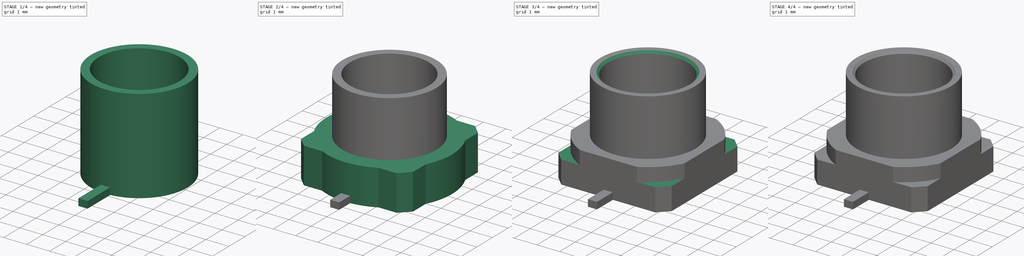
[diagram: build sequence overview — one tinted view per stage of 4, left to right]
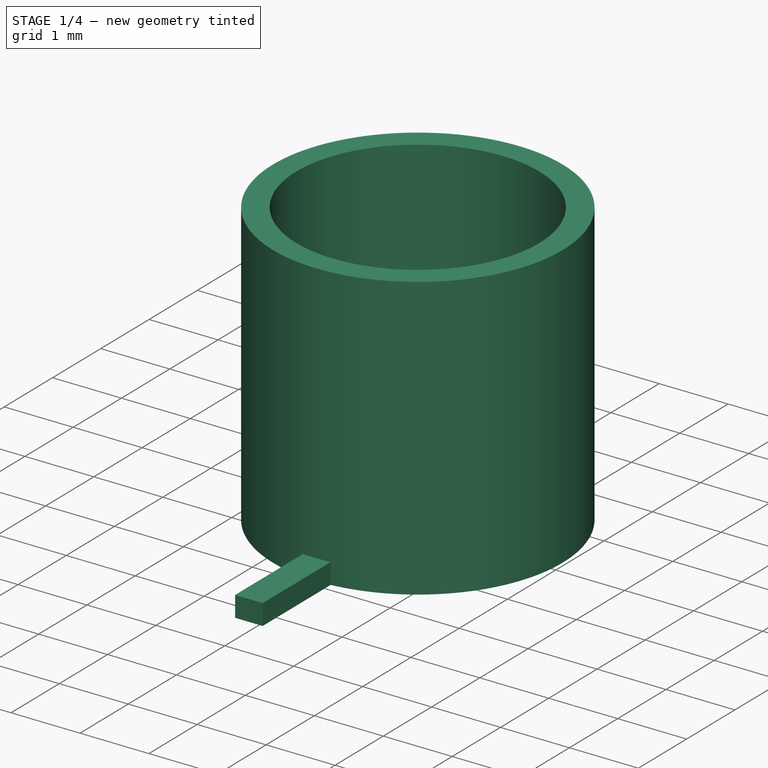
[diagram: stage 1 of 4 — iso view after this stage's code; geometry added in this stage tinted green]
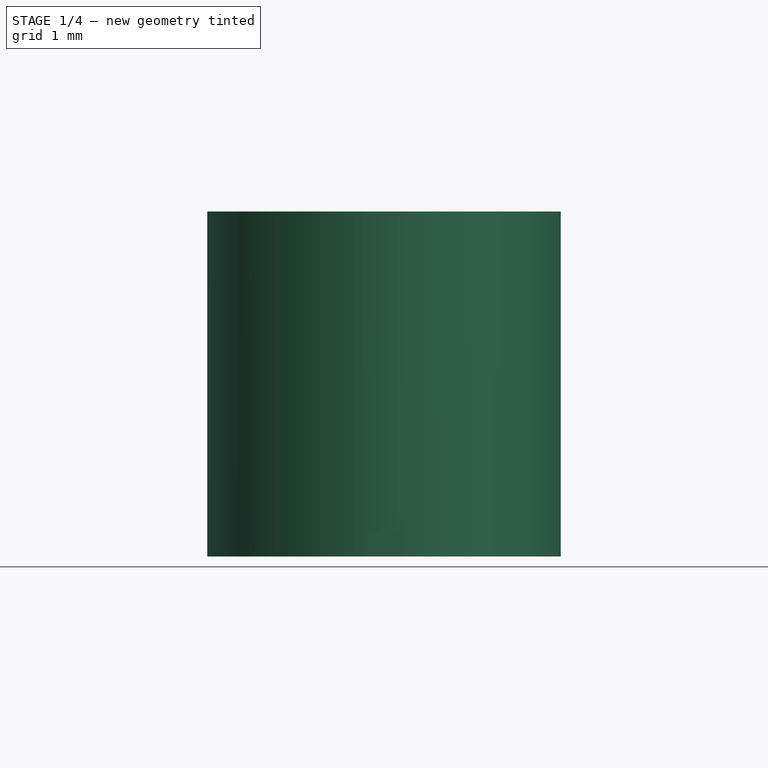
[diagram: stage 1 of 4 — front view after this stage's code; geometry added in this stage tinted green]
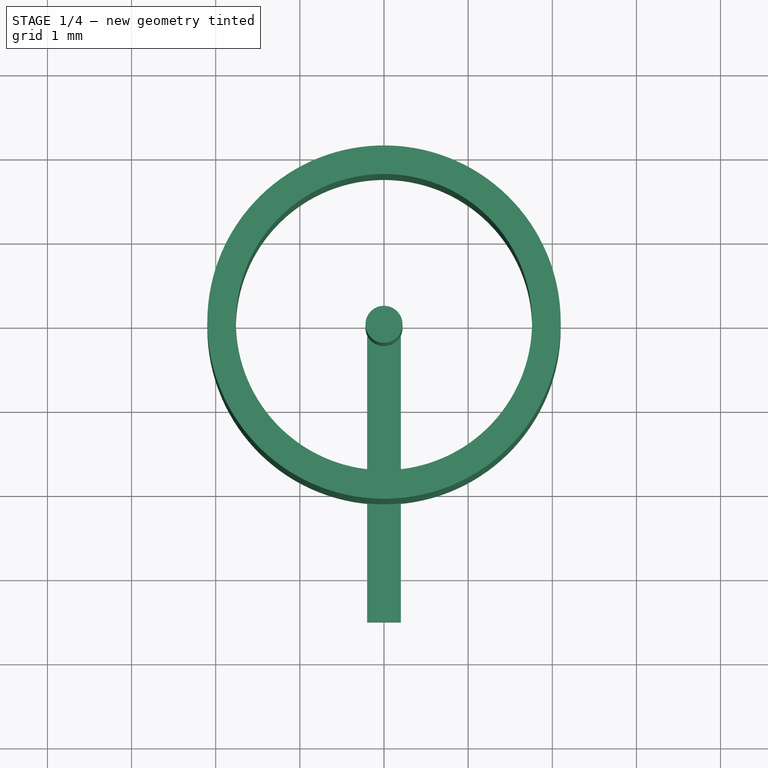
[diagram: stage 1 of 4 — top view after this stage's code; geometry added in this stage tinted green]
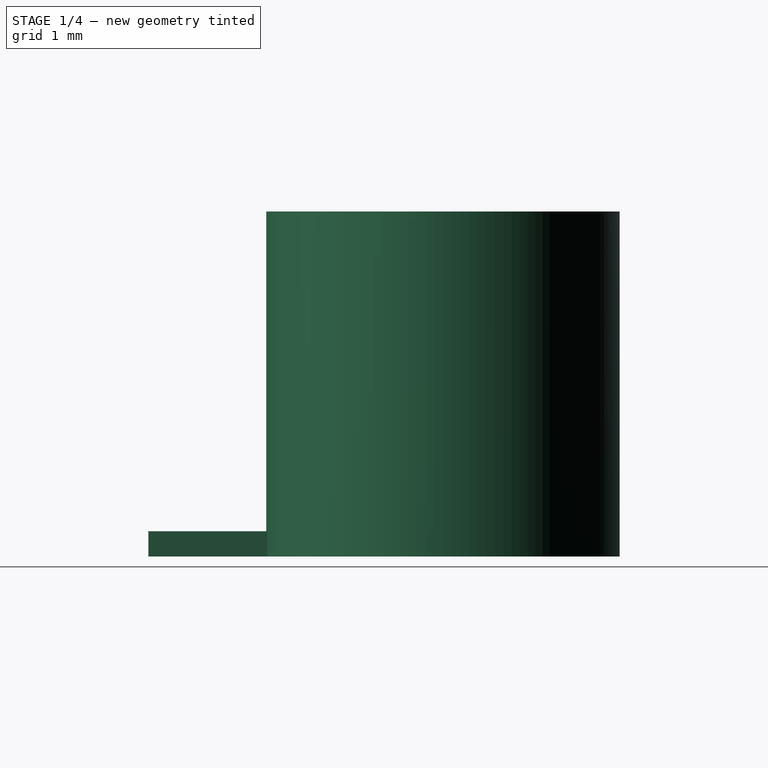
[diagram: stage 1 of 4 — right view after this stage's code; geometry added in this stage tinted green]
FCSTD DOCUMENT  (FreeCAD 0.18R13826 (Git))
Label: complex-Polyline-footprint
License: All rights reserved
LicenseURL: http://en.wikipedia.org/wiki/All_rights_reserved
objects: Sketcher::SketchObject×10, Part::Extrusion×5, App::Annotation×2, Part::FeaturePython×2, Part::Chamfer×2, Image::ImagePlane×1, App::DocumentObjectGroup×1, Part::MultiCommon×1, Part::Compound×1, Part::MultiFuse×1, Part::Feature×1
note: 23 computed .brp shape members not serialized (recipe doc carries the construction recipe); baked Part::Feature solids carry a one-line shape summary decoded from their .brp

FEATURE [Part::Extrusion] Extrude002
  Base = -> Sketch008
  Dir = (0,0,1)
  DirMode = 2
  FaceMakerClass = Part::FaceMakerBullseye
  LengthFwd = 4.1
  LengthRev = 0
  Solid = true
  Symmetric = false
FEATURE [Part::Extrusion] Extrude003
  Base = -> Sketch009
  Dir = (0,0,1)
  DirMode = 2
  FaceMakerClass = Part::FaceMakerBullseye
  LengthFwd = 2.59
  LengthRev = 0
  Solid = true
  Symmetric = false
FEATURE [Part::Extrusion] Extrude004
  Base = -> Sketch010
  Dir = (0,0,1)
  DirMode = 2
  FaceMakerClass = Part::FaceMakerBullseye
  LengthFwd = 0.3
  LengthRev = 0
  Solid = true
  Symmetric = false
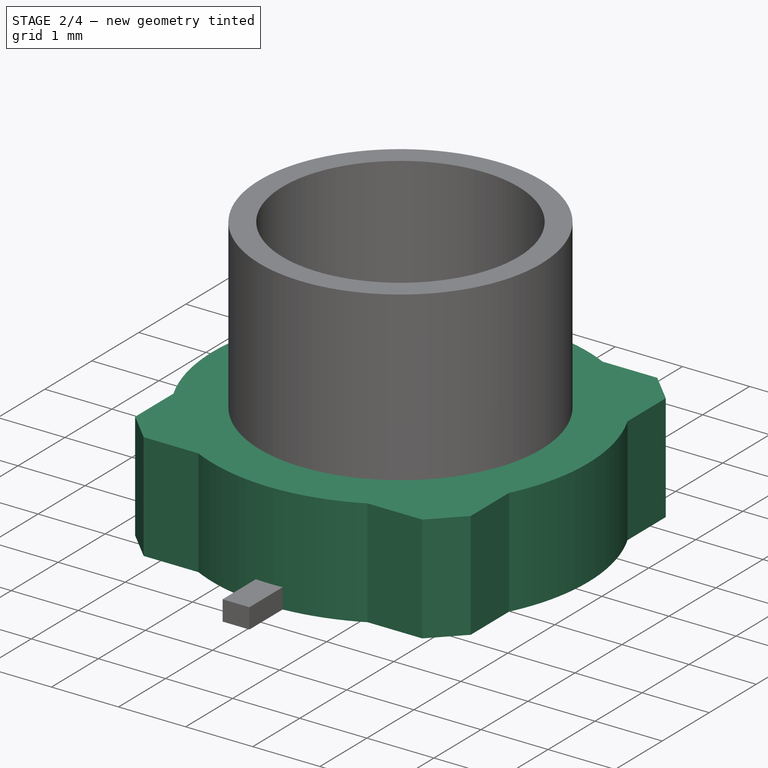
[diagram: stage 2 of 4 — iso view after this stage's code; geometry added in this stage tinted green]
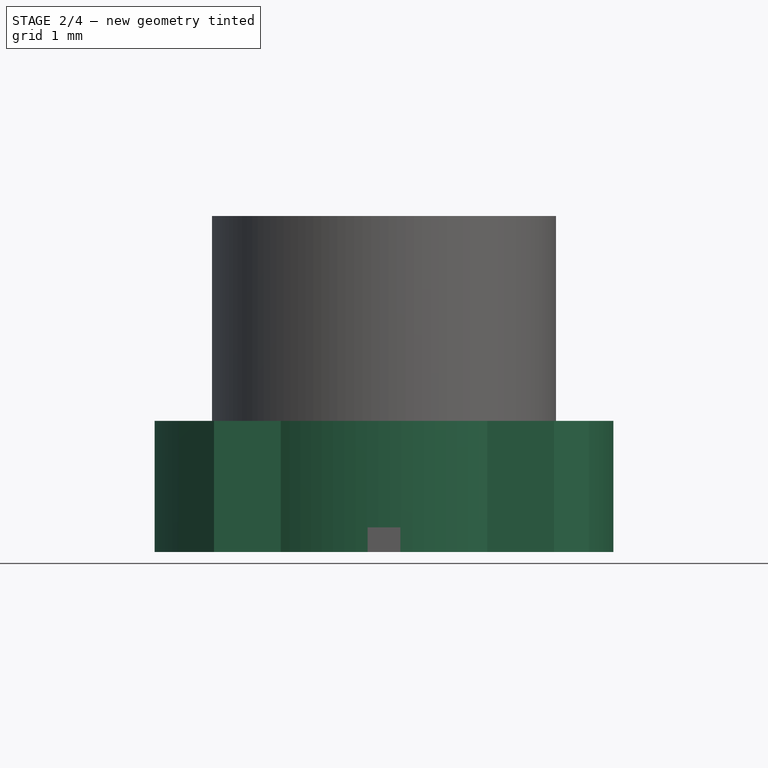
[diagram: stage 2 of 4 — front view after this stage's code; geometry added in this stage tinted green]
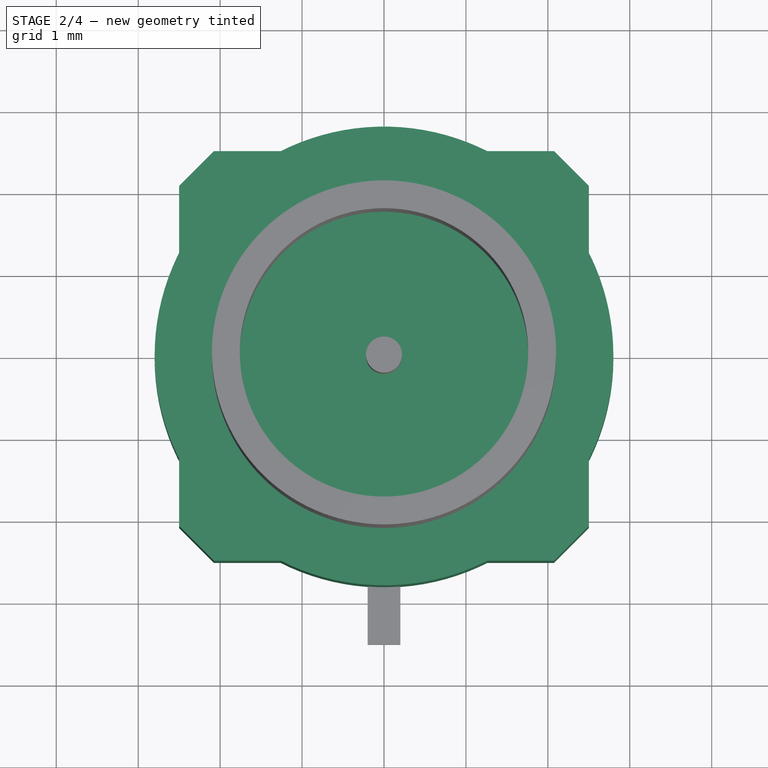
[diagram: stage 2 of 4 — top view after this stage's code; geometry added in this stage tinted green]
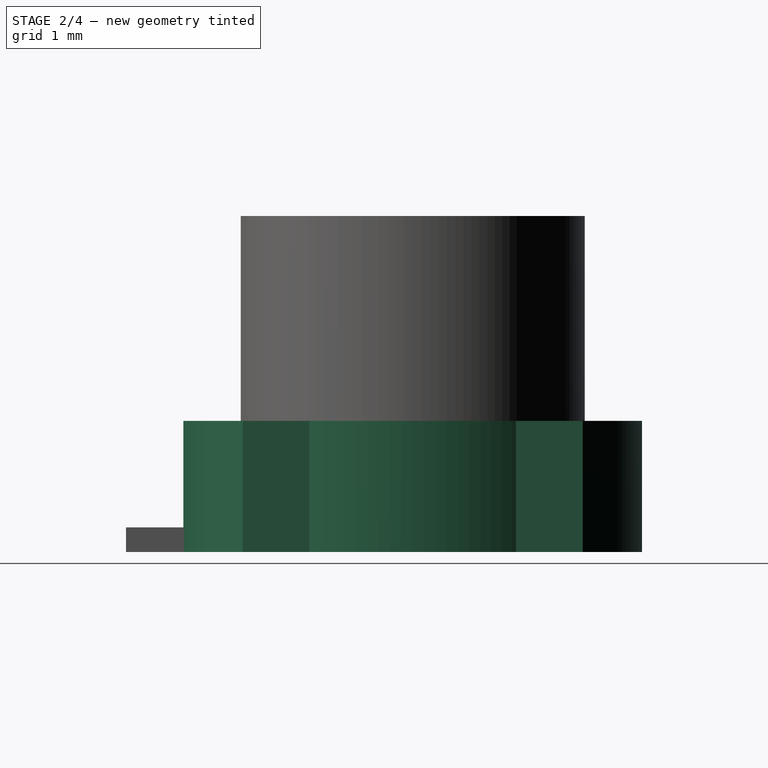
[diagram: stage 2 of 4 — right view after this stage's code; geometry added in this stage tinted green]
FEATURE [Image::ImagePlane] ImagePlane
  Placement = pos=(2.04,-0.2,-3) rot=(0,0,1;0rad)
  XSize = 19.2781
  YSize = 18.0682
FEATURE [Sketcher::SketchObject] Sketch  label="Pads_Poly_Arc"
  sketch-geometry (10):
    g0: Circle [constr] CenterX=0 CenterY=0 CenterZ=0 NormalX=0 NormalY=0 NormalZ=1 AngleXU=0 Radius=2
    g1: LineSegment StartX=-0.968702 StartY=-1.74975 StartZ=0 EndX=-0.968702 EndY=-2.6087 EndZ=0
    g2: LineSegment StartX=-0.968702 StartY=-2.6087 StartZ=0 EndX=-2.5687 EndY=-2.6087 EndZ=0
    g3: LineSegment StartX=-2.5687 StartY=-2.6087 StartZ=0 EndX=-2.5687 EndY=2.5913 EndZ=0
    g4: LineSegment StartX=-2.5687 StartY=2.5913 StartZ=0 EndX=2.6313 EndY=2.5913 EndZ=0
    g5: LineSegment StartX=2.6313 StartY=2.5913 StartZ=0 EndX=2.6313 EndY=-2.6087 EndZ=0
    g6: LineSegment StartX=2.6313 StartY=-2.6087 StartZ=0 EndX=1.0313 EndY=-2.6087 EndZ=0
    g7: LineSegment StartX=1.0313 StartY=-2.6087 StartZ=0 EndX=1.0313 EndY=-1.7136 EndZ=0
    g8: ArcOfCircle CenterX=0 CenterY=0 CenterZ=0 NormalX=0 NormalY=0 NormalZ=1 AngleXU=0 Radius=2 StartAngle=5.25415 EndAngle=10.49
    g9: Circle CenterX=-2 CenterY=-2 CenterZ=0 NormalX=0 NormalY=0 NormalZ=1 AngleXU=0 Radius=0.3
  constraints (27):
    c: Radius(g0) = 2
    c: Coincident(g-1,g0)
    c: Coincident(g1,g2)
    c: Coincident(g2,g3)
    c: Coincident(g3,g4)
    c: Coincident(g4,g5)
    c: Coincident(g5,g6)
    c: Coincident(g6,g7)
    c: Vertical(g5)
    c: Vertical(g3)
    c: Horizontal(g4)
    c: Horizontal(g6)
    c: Horizontal(g2)
    c: Vertical(g7)
    c: Vertical(g1)
    c: DistanceY(g3,g3) = 5.2
    c: Equal(g3,g5)
    c: DistanceX(g4,g4) = 5.2
    c: DistanceX(g2,g2) = 1.6
    c: Equal(g2,g6)
    c: Coincident(g-1,g8)
    c: Radius(g8) = 2
    c: Coincident(g1,g8)
    c: Coincident(g7,g8)
    c: DistanceX(g9,g-1) = 2
    c: DistanceY(g9,g-1) = 2
    c: Radius(g9) = 0.3
FEATURE [Sketcher::SketchObject] Sketch001  label="Pads_TH_SMD"
  sketch-geometry (4):
    g0: LineSegment StartX=-0.25 StartY=-2.2 StartZ=0 EndX=0.25 EndY=-2.2 EndZ=0
    g1: LineSegment StartX=0.25 StartY=-2.2 StartZ=0 EndX=0.25 EndY=-3.6 EndZ=0
    g2: LineSegment StartX=0.25 StartY=-3.6 StartZ=0 EndX=-0.25 EndY=-3.6 EndZ=0
    g3: LineSegment StartX=-0.25 StartY=-3.6 StartZ=0 EndX=-0.25 EndY=-2.2 EndZ=0
  constraints (12):
    c: Coincident(g0,g1)
    c: Coincident(g1,g2)
    c: Coincident(g2,g3)
    c: Coincident(g3,g0)
    c: Horizontal(g0)
    c: Horizontal(g2)
    c: Vertical(g1)
    c: Vertical(g3)
    c: DistanceX(g2,g2) = 0.5
    c: DistanceY(g2,g-1) = 3.6
    c: DistanceY(g1,g1) = 1.4
    c: DistanceX(g0,g-1) = 0.25
FEATURE [App::Annotation] Text  label="Ref#_1.0mm"
  LabelText = REF**
  Position = (0,4,0)
FEATURE [App::Annotation] Text001  label="Value#_1.0mm"
  LabelText = Value 
  Position = (0,-6,0)
FEATURE [Sketcher::SketchObject] Sketch003  label="F_Fab_0.01"
  sketch-geometry (14):
    g0: LineSegment StartX=-2.5 StartY=1.82966 StartZ=0 EndX=-1.82966 EndY=2.5 EndZ=0
    g1: LineSegment StartX=-1.82966 StartY=2.5 StartZ=0 EndX=1.82966 EndY=2.5 EndZ=0
    g2: LineSegment StartX=1.82966 StartY=2.5 StartZ=0 EndX=2.5 EndY=1.82966 EndZ=0
    g3: LineSegment StartX=2.5 StartY=1.82966 StartZ=0 EndX=2.5 EndY=-1.82966 EndZ=0
    g4: LineSegment StartX=2.5 StartY=-1.82966 StartZ=0 EndX=1.82966 EndY=-2.5 EndZ=0
    g5: LineSegment StartX=-1.82966 StartY=-2.5 StartZ=0 EndX=-2.5 EndY=-1.82966 EndZ=0
    g6: LineSegment StartX=-2.5 StartY=-1.82966 StartZ=0 EndX=-2.5 EndY=1.82966 EndZ=0
    g7: Circle CenterX=0 CenterY=0 CenterZ=0 NormalX=0 NormalY=0 NormalZ=1 AngleXU=0 Radius=2
    g8: Circle CenterX=0 CenterY=0 CenterZ=0 NormalX=0 NormalY=0 NormalZ=1 AngleXU=0 Radius=0.3
    g9: LineSegment StartX=-0.25 StartY=-2.5 StartZ=0 EndX=-0.25 EndY=-3.5 EndZ=0
    g10: LineSegment StartX=-0.25 StartY=-3.5 StartZ=0 EndX=0.25 EndY=-3.5 EndZ=0
    g11: LineSegment StartX=0.25 StartY=-3.5 StartZ=0 EndX=0.25 EndY=-2.5 EndZ=0
    g12: LineSegment StartX=-1.82966 StartY=-2.5 StartZ=0 EndX=-0.25 EndY=-2.5 EndZ=0
    g13: LineSegment StartX=0.25 StartY=-2.5 StartZ=0 EndX=1.82966 EndY=-2.5 EndZ=0
  constraints (40):
    c: Coincident(g0,g1)
    c: Coincident(g1,g2)
    c: Coincident(g2,g3)
    c: Coincident(g3,g4)
    c: Coincident(g5,g6)
    c: Coincident(g6,g0)
    c: Horizontal(g1)
    c: Vertical(g3)
    c: Vertical(g6)
    c: Equal(g2,g4)
    c: Equal(g4,g5)
    c: Equal(g5,g0)
    c: DistanceX(g0,g-1) = 2.5
    c: DistanceY(g-1,g1) = 2.5
    c: Angle(g0,g1) = 2.35619
    c: Angle(g1,g2) = 2.35619
    c: Angle(g5,g6) = 2.35619
    c: Angle(g3,g4) = 2.35619
    c: Symmetric(g0,g1,g-2)
    c: Symmetric(g5,g0,g-1)
    c: Distance(g4) = 0.948
    c: Coincident(g-1,g7)
    c: Radius(g7) = 2
    c: Coincident(g-1,g8)
    c: Radius(g8) = 0.3
    c: Coincident(g9,g10)
    c: Coincident(g10,g11)
    c: Horizontal(g13)
    c: Horizontal(g12)
    c: Horizontal(g10)
    c: Vertical(g11)
    c: Vertical(g9)
    c: Coincident(g5,g12)
    c: Coincident(g4,g13)
    c: Coincident(g11,g13)
    c: Coincident(g9,g12)
    c: DistanceX(g10,g10) = 0.5
    c: Equal(g12,g13)
    c: DistanceY(g11,g11) = 1
    c: Equal(g9,g11)
FEATURE [Sketcher::SketchObject] Sketch004  label="F_CrtYd_0.05"
  sketch-geometry (8):
    g0: LineSegment StartX=-2.8 StartY=2.8 StartZ=0 EndX=2.8 EndY=2.8 EndZ=0
    g1: LineSegment StartX=2.8 StartY=2.8 StartZ=0 EndX=2.8 EndY=-2.8 EndZ=0
    g2: LineSegment StartX=-2.8 StartY=-2.8 StartZ=0 EndX=-2.8 EndY=2.8 EndZ=0
    g3: LineSegment StartX=-2.8 StartY=-2.8 StartZ=0 EndX=-0.5 EndY=-2.8 EndZ=0
    g4: LineSegment StartX=-0.5 StartY=-2.8 StartZ=0 EndX=-0.5 EndY=-3.79947 EndZ=0
    g5: LineSegment StartX=-0.5 StartY=-3.79947 StartZ=0 EndX=0.5 EndY=-3.8 EndZ=0
    g6: LineSegment StartX=0.5 StartY=-3.8 StartZ=0 EndX=0.5 EndY=-2.8 EndZ=0
    g7: LineSegment StartX=0.5 StartY=-2.8 StartZ=0 EndX=2.8 EndY=-2.8 EndZ=0
  constraints (23):
    c: Coincident(g0,g1)
    c: Coincident(g2,g0)
    c: Horizontal(g0)
    c: Vertical(g1)
    c: Vertical(g2)
    c: Symmetric(g0,g0,g-2)
    c: DistanceX(g0,g0) = 5.6
    c: DistanceY(g-1,g0) = 2.8
    c: DistanceY(g2,g-1) = 2.8
    c: Coincident(g3,g4)
    c: Coincident(g4,g5)
    c: Coincident(g5,g6)
    c: Coincident(g6,g7)
    c: Coincident(g1,g7)
    c: Horizontal(g7)
    c: Horizontal(g3)
    c: Vertical(g4)
    c: Vertical(g6)
    c: DistanceX(g3,g3) = 2.3
    c: DistanceX(g7,g7) = 2.3
    c: DistanceY(g1,g-1) = 2.8
    c: DistanceX(g5,g5) = 1
    c: DistanceY(g6,g6) = 1
FEATURE [Sketcher::SketchObject] Sketch006  label="F_Silks_0.16"
  sketch-geometry (8):
    g0: LineSegment StartX=-2.8 StartY=2.8 StartZ=0 EndX=2.8 EndY=2.8 EndZ=0
    g1: LineSegment StartX=2.8 StartY=2.8 StartZ=0 EndX=2.8 EndY=-2.8 EndZ=0
    g2: LineSegment StartX=-2.8 StartY=-2.8 StartZ=0 EndX=-2.8 EndY=2.8 EndZ=0
    g3: LineSegment StartX=-2.8 StartY=-2.8 StartZ=0 EndX=-0.5 EndY=-2.8 EndZ=0
    g4: LineSegment StartX=-0.5 StartY=-2.8 StartZ=0 EndX=-0.5 EndY=-3.79947 EndZ=0
    g5: LineSegment StartX=-0.5 StartY=-3.79947 StartZ=0 EndX=0.5 EndY=-3.8 EndZ=0
    g6: LineSegment StartX=0.5 StartY=-3.8 StartZ=0 EndX=0.5 EndY=-2.8 EndZ=0
    g7: LineSegment StartX=0.5 StartY=-2.8 StartZ=0 EndX=2.8 EndY=-2.8 EndZ=0
  constraints (23):
    c: Coincident(g0,g1)
    c: Coincident(g2,g0)
    c: Horizontal(g0)
    c: Vertical(g1)
    c: Vertical(g2)
    c: Symmetric(g0,g0,g-2)
    c: DistanceX(g0,g0) = 5.6
    c: DistanceY(g-1,g0) = 2.8
    c: DistanceY(g2,g-1) = 2.8
    c: Coincident(g3,g4)
    c: Coincident(g4,g5)
    c: Coincident(g5,g6)
    c: Coincident(g6,g7)
    c: Coincident(g1,g7)
    c: Horizontal(g7)
    c: Horizontal(g3)
    c: Vertical(g4)
    c: Vertical(g6)
    c: DistanceX(g3,g3) = 2.3
    c: DistanceX(g7,g7) = 2.3
    c: DistanceY(g1,g-1) = 2.8
    c: DistanceX(g5,g5) = 1
    c: DistanceY(g6,g6) = 1
FEATURE [App::DocumentObjectGroup] Group  label="RF-19S101-40ML5"
  Group = -> [Text,Text001,Sketch001,Sketch003,Sketch004,Sketch006,Sketch]
FEATURE [Sketcher::SketchObject] Sketch007  label="base"
  sketch-geometry (8):
    g0: LineSegment StartX=-2.5 StartY=2.07574 StartZ=0 EndX=-2.07574 EndY=2.5 EndZ=0
    g1: LineSegment StartX=-2.07574 StartY=2.5 StartZ=0 EndX=2.07574 EndY=2.5 EndZ=0
    g2: LineSegment StartX=2.07574 StartY=2.5 StartZ=0 EndX=2.5 EndY=2.07574 EndZ=0
    g3: LineSegment StartX=2.5 StartY=2.07574 StartZ=0 EndX=2.5 EndY=-2.07574 EndZ=0
    g4: LineSegment StartX=2.5 StartY=-2.07574 StartZ=0 EndX=2.07574 EndY=-2.5 EndZ=0
    g5: LineSegment StartX=-2.07574 StartY=-2.5 StartZ=0 EndX=-2.5 EndY=-2.07574 EndZ=0
    g6: LineSegment StartX=-2.5 StartY=-2.07574 StartZ=0 EndX=-2.5 EndY=2.07574 EndZ=0
    g7: LineSegment StartX=-2.07574 StartY=-2.5 StartZ=0 EndX=2.07574 EndY=-2.5 EndZ=0
  constraints (24):
    c: Coincident(g0,g1)
    c: Coincident(g1,g2)
    c: Coincident(g2,g3)
    c: Coincident(g3,g4)
    c: Coincident(g5,g6)
    c: Coincident(g6,g0)
    c: Horizontal(g1)
    c: Vertical(g3)
    c: Vertical(g6)
    c: Equal(g2,g4)
    c: Equal(g4,g5)
    c: Equal(g5,g0)
    c: DistanceX(g0,g-1) = 2.5
    c: DistanceY(g-1,g1) = 2.5
    c: Angle(g0,g1) = 2.35619
    c: Angle(g1,g2) = 2.35619
    c: Angle(g5,g6) = 2.35619
    c: Angle(g3,g4) = 2.35619
    c: Symmetric(g0,g1,g-2)
    c: Symmetric(g5,g0,g-1)
    c: Distance(g4) = 0.6
    c: Horizontal(g7)
    c: Coincident(g5,g7)
    c: Coincident(g4,g7)
FEATURE [Sketcher::SketchObject] Sketch008  label="cyl"
  sketch-geometry (2):
    g0: Circle CenterX=0 CenterY=0 CenterZ=0 NormalX=0 NormalY=0 NormalZ=1 AngleXU=0 Radius=1.76
    g1: Circle CenterX=0 CenterY=0 CenterZ=0 NormalX=0 NormalY=0 NormalZ=1 AngleXU=0 Radius=2.1
  constraints (4):
    c: Coincident(g-1,g0)
    c: Radius(g0) = 1.76
    c: Radius(g1) = 2.1
    c: Coincident(g-1,g1)
FEATURE [Sketcher::SketchObject] Sketch009  label="centralpin"
  sketch-geometry (1):
    g0: Circle CenterX=0 CenterY=0 CenterZ=0 NormalX=0 NormalY=0 NormalZ=1 AngleXU=0 Radius=0.22
  constraints (2):
    c: Coincident(g-1,g0)
    c: Radius(g0) = 0.22
FEATURE [Sketcher::SketchObject] Sketch010  label="pinrect"
  sketch-geometry (4):
    g0: LineSegment StartX=-0.2 StartY=0 StartZ=0 EndX=-0.2 EndY=-3.5 EndZ=0
    g1: LineSegment StartX=-0.2 StartY=-3.5 StartZ=0 EndX=0.2 EndY=-3.5 EndZ=0
    g2: LineSegment StartX=0.2 StartY=-3.5 StartZ=0 EndX=0.2 EndY=0 EndZ=0
    g3: LineSegment StartX=-0.2 StartY=0 StartZ=0 EndX=0.2 EndY=0 EndZ=0
  constraints (12):
    c: Coincident(g0,g1)
    c: Coincident(g1,g2)
    c: Horizontal(g1)
    c: Vertical(g2)
    c: Vertical(g0)
    c: DistanceX(g1,g1) = 0.4
    c: DistanceY(g2,g2) = 3.5
    c: Equal(g0,g2)
    c: DistanceX(g0,g-1) = 0.2
    c: DistanceY(g0,g-1) = 3.5
    c: Coincident(g2,g3)
    c: Coincident(g0,g3)
FEATURE [Sketcher::SketchObject] Sketch011  label="cyl001"
  sketch-geometry (1):
    g0: Circle CenterX=0 CenterY=0 CenterZ=0 NormalX=0 NormalY=0 NormalZ=1 AngleXU=0 Radius=2.8
  constraints (2):
    c: Coincident(g-1,g0)
    c: Radius(g0) = 2.8
FEATURE [Part::Extrusion] Extrude  label="Extrude-base"
  Base = -> Sketch007
  Dir = (0,0,1)
  DirMode = 2
  FaceMakerClass = Part::FaceMakerBullseye
  LengthFwd = 1
  LengthRev = 0
  Solid = true
  Symmetric = false
FEATURE [Part::Extrusion] Extrude001
  Base = -> Sketch011
  Dir = (0,0,1)
  DirMode = 2
  FaceMakerClass = Part::FaceMakerBullseye
  LengthFwd = 1.6
  LengthRev = 0
  Solid = true
  Symmetric = false
FEATURE [Part::FeaturePython] Clone  label="Clone of Extrude-base"  # Draft clone (typed FeaturePython)
  AttacherType = Attacher::AttachEngine3D
  Fuse = false
  Objects = -> [Extrude]
  Scale = (1,1,1.6)
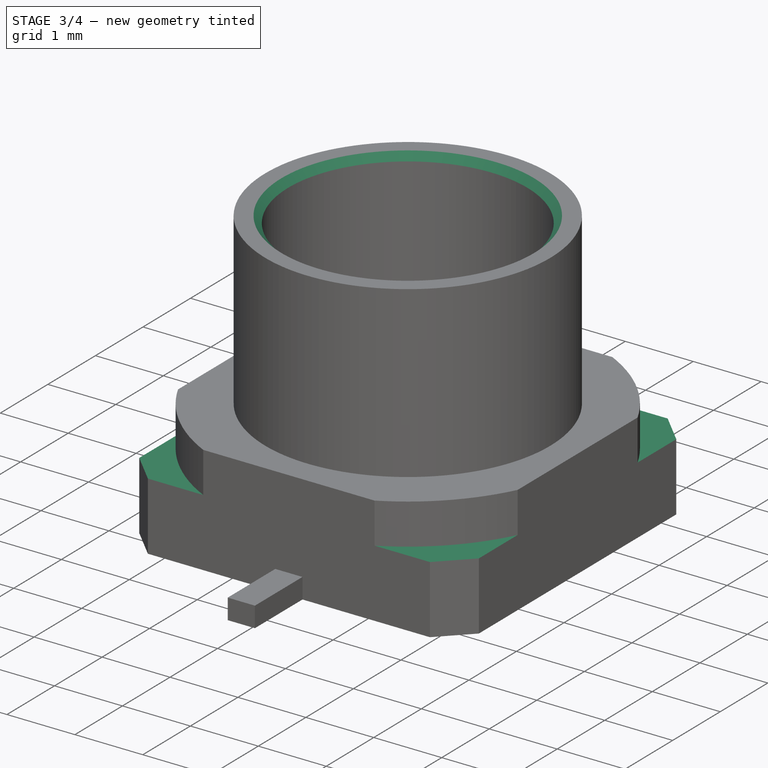
[diagram: stage 3 of 4 — iso view after this stage's code; geometry added in this stage tinted green]
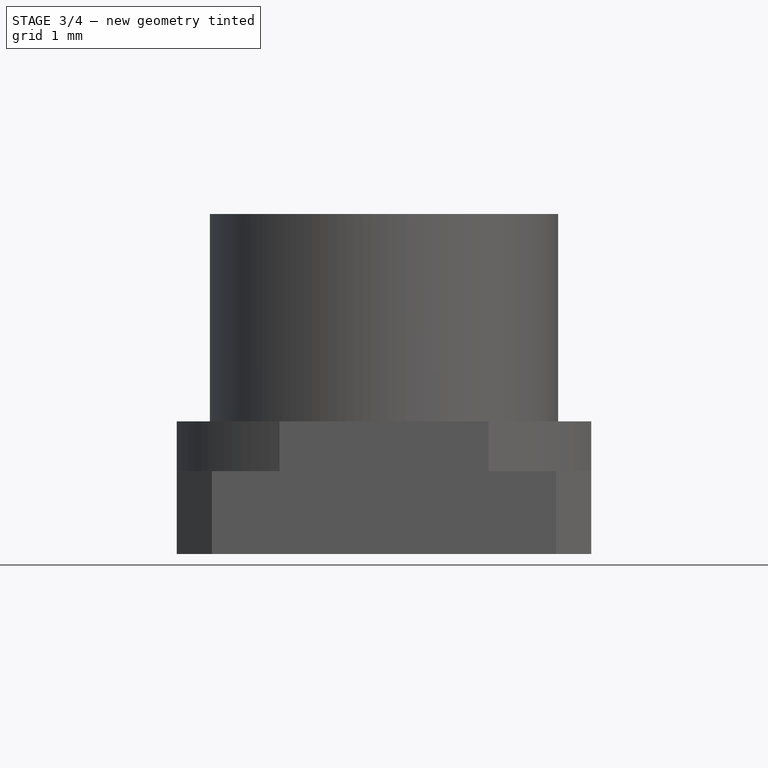
[diagram: stage 3 of 4 — front view after this stage's code; geometry added in this stage tinted green]
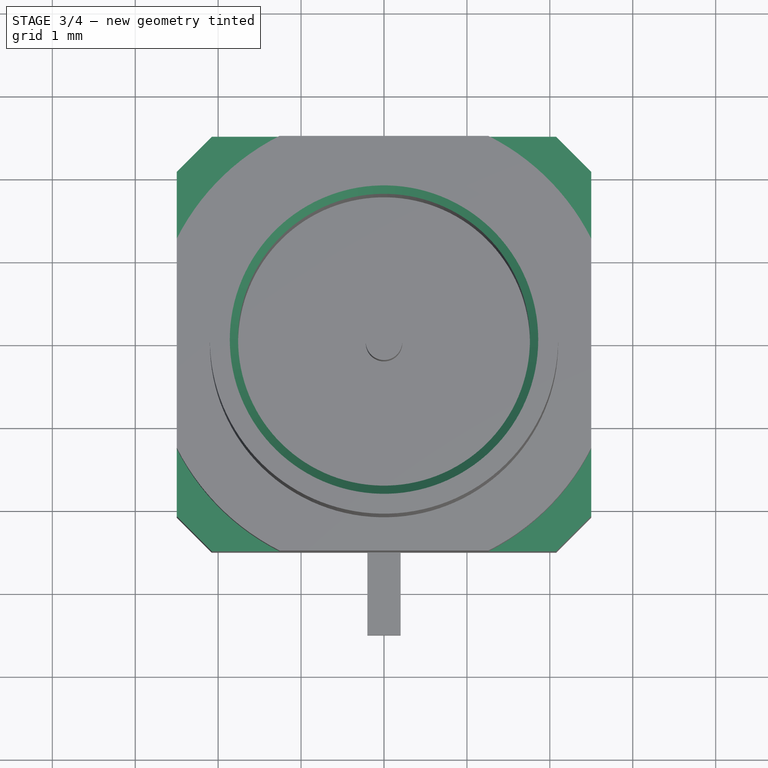
[diagram: stage 3 of 4 — top view after this stage's code; geometry added in this stage tinted green]
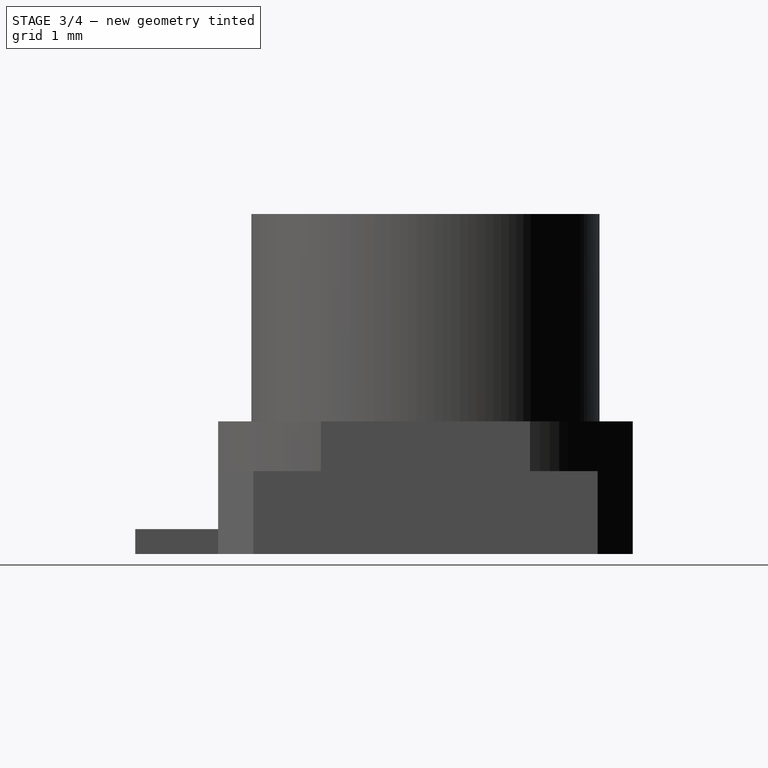
[diagram: stage 3 of 4 — right view after this stage's code; geometry added in this stage tinted green]
FEATURE [Part::MultiCommon] Common
  Shapes = -> [Extrude001,Clone]
FEATURE [Part::Compound] Compound
  Links = -> [Extrude002,Extrude,Common,Extrude003,Extrude004]
FEATURE [Part::Chamfer] Chamfer
  Base = -> Compound
  Edges = 1 edges r=0.1: [Edge6]
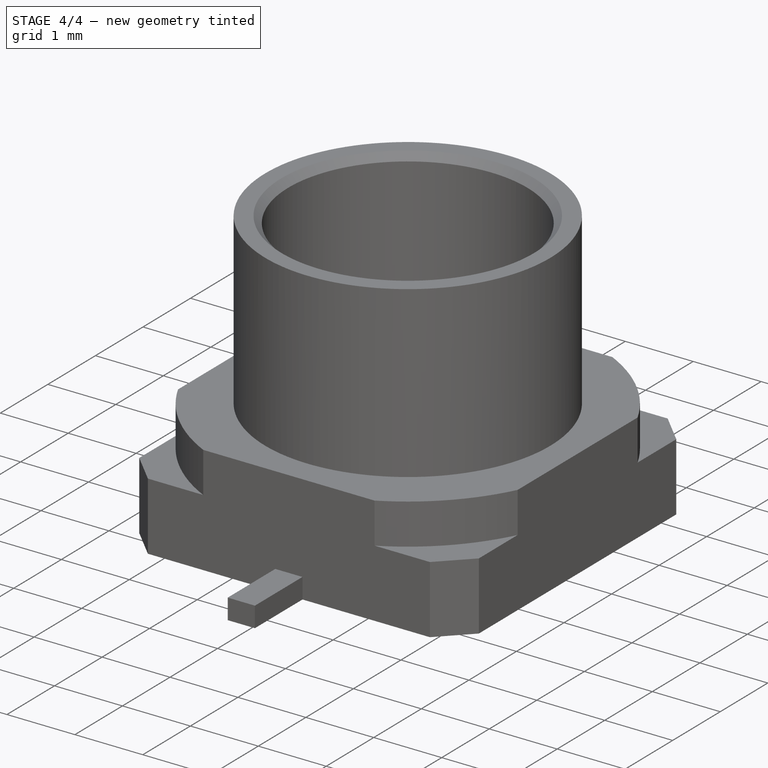
[diagram: stage 4 of 4 — iso view after this stage's code; geometry added in this stage tinted green]
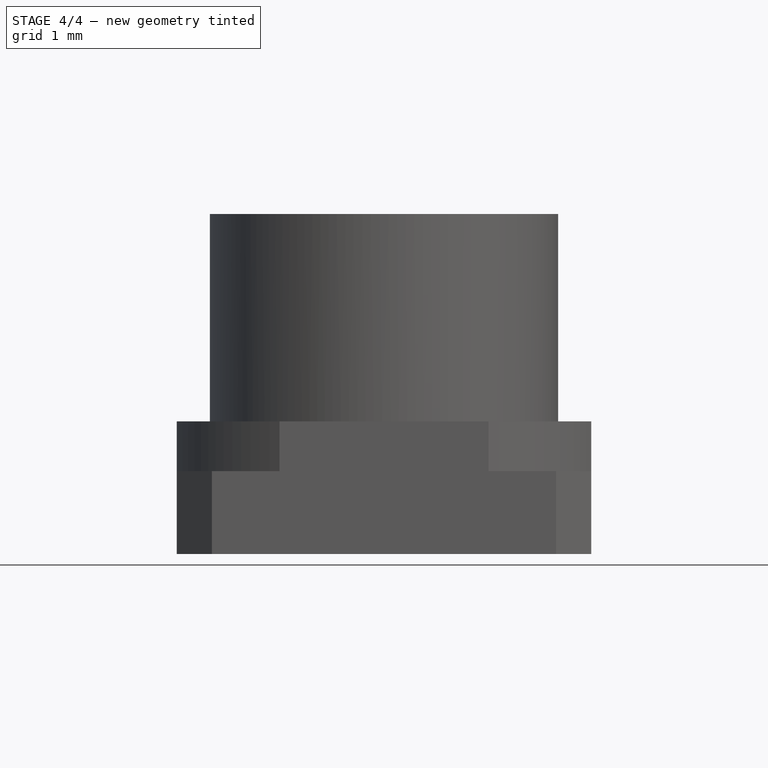
[diagram: stage 4 of 4 — front view after this stage's code; geometry added in this stage tinted green]
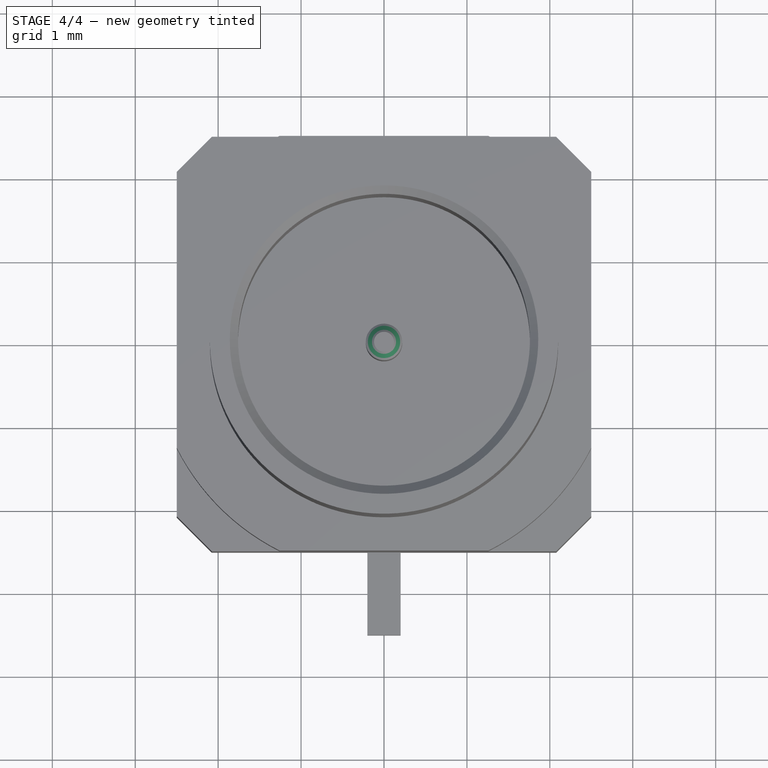
[diagram: stage 4 of 4 — top view after this stage's code; geometry added in this stage tinted green]
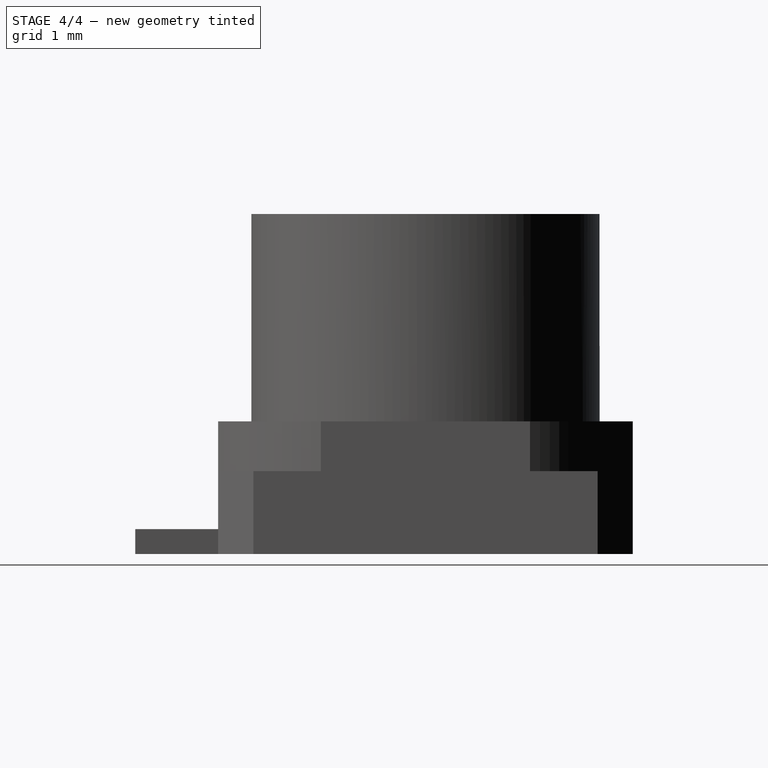
[diagram: stage 4 of 4 — right view after this stage's code; geometry added in this stage tinted green]
FEATURE [Part::Chamfer] Chamfer001
  Base = -> Chamfer
  Edges = 1 edges r=0.1: [Edge59]
FEATURE [Part::FeaturePython] refine  label="refine_Chamfer001"  # WARN: FeaturePython — macro-defined, semantics opaque (R4)
  Base = -> Chamfer001
FEATURE [Part::MultiFuse] Fusion001  label="R-19S101-40ML5-fused"
  Shapes = -> [refine]
FEATURE [Part::Feature] Shape  label="R-19S101-40ML5"
  shape: bbox 5 x 6 x 4.1 mm, 54 faces (baked)
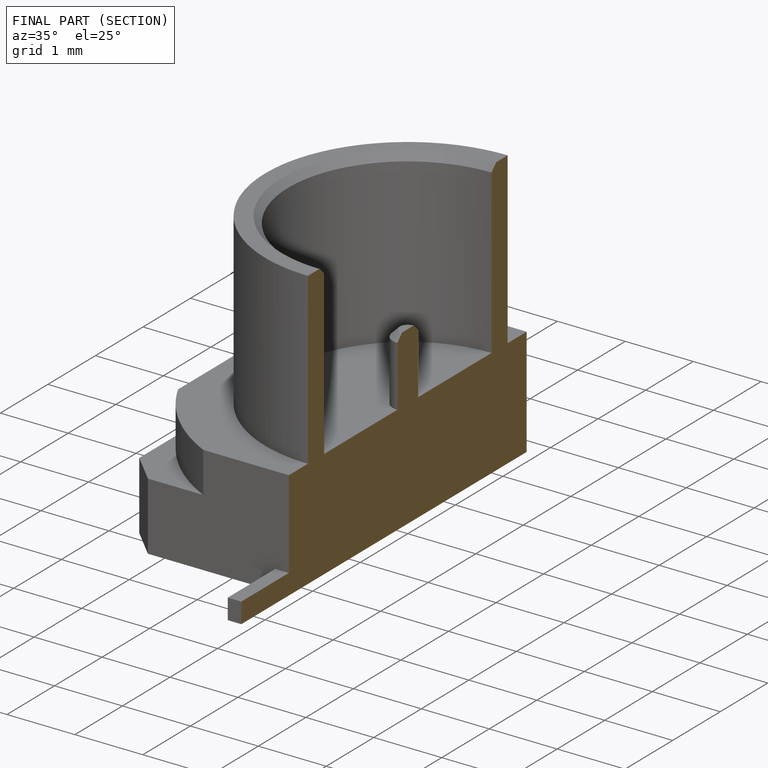
[diagram: finished part — half-section view (interior)]
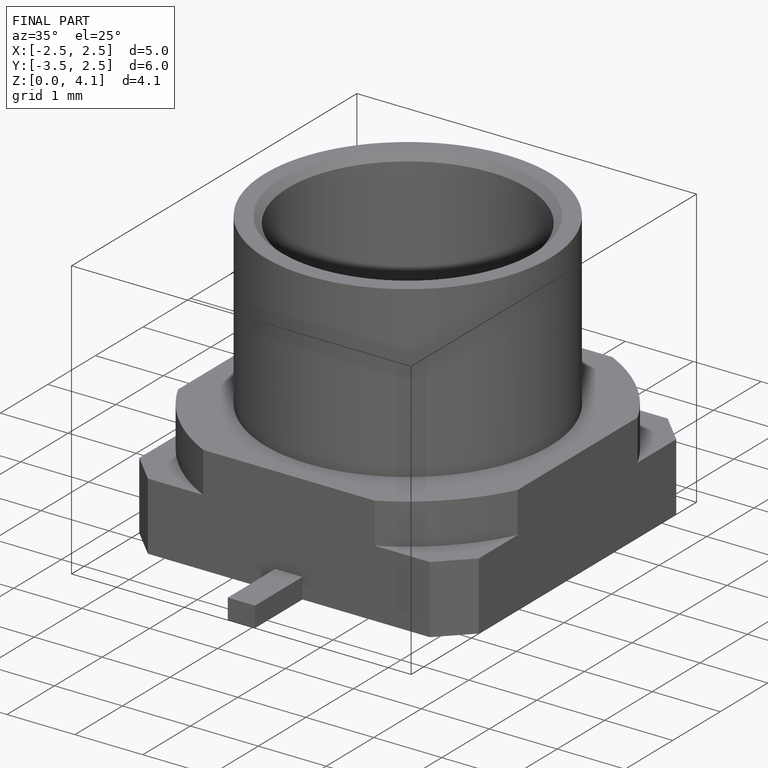
[diagram: finished part — iso view with bounding-box wireframe]
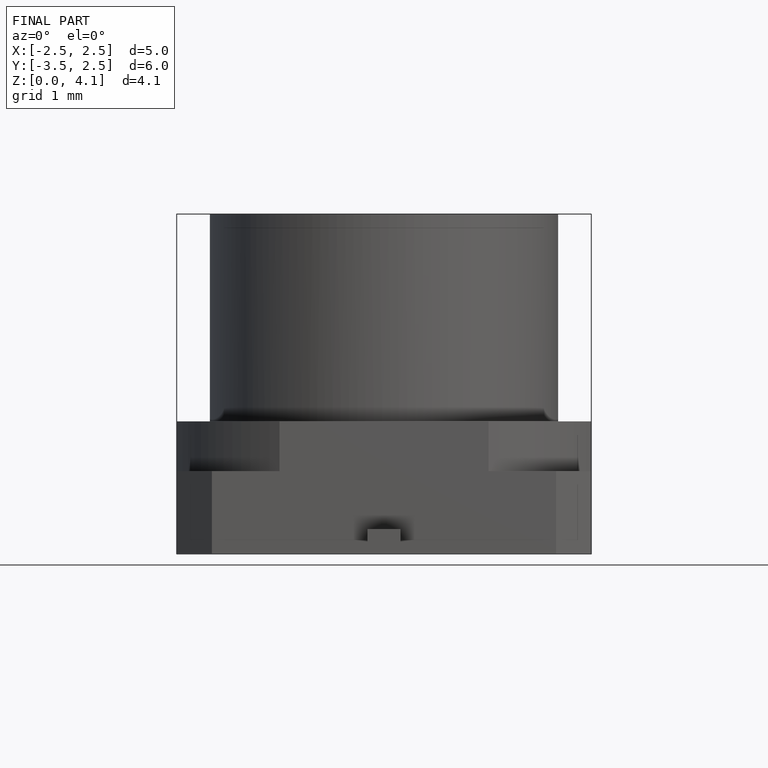
[diagram: finished part — front view with bounding-box wireframe]
